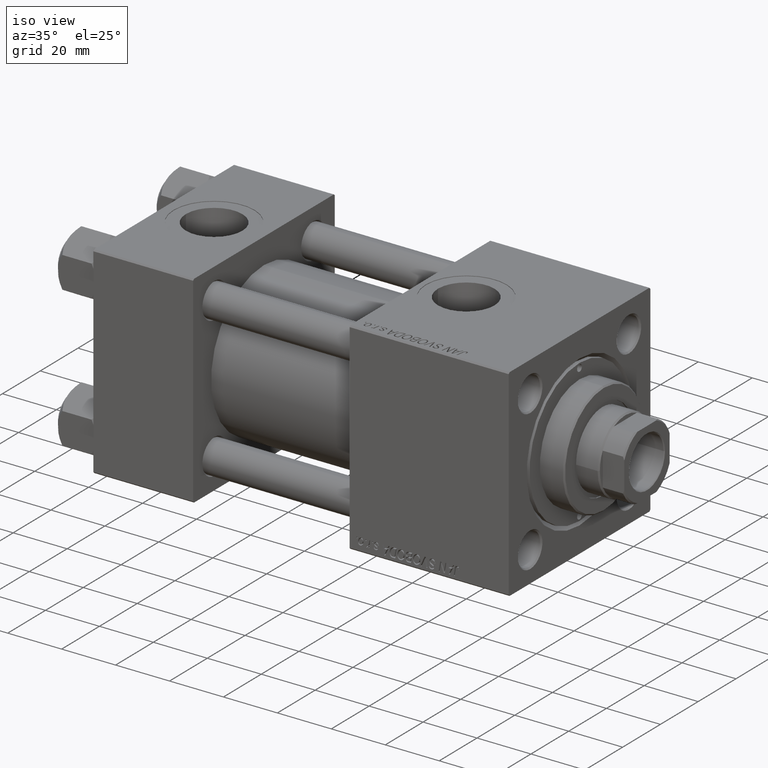
[diagram: clean part render]
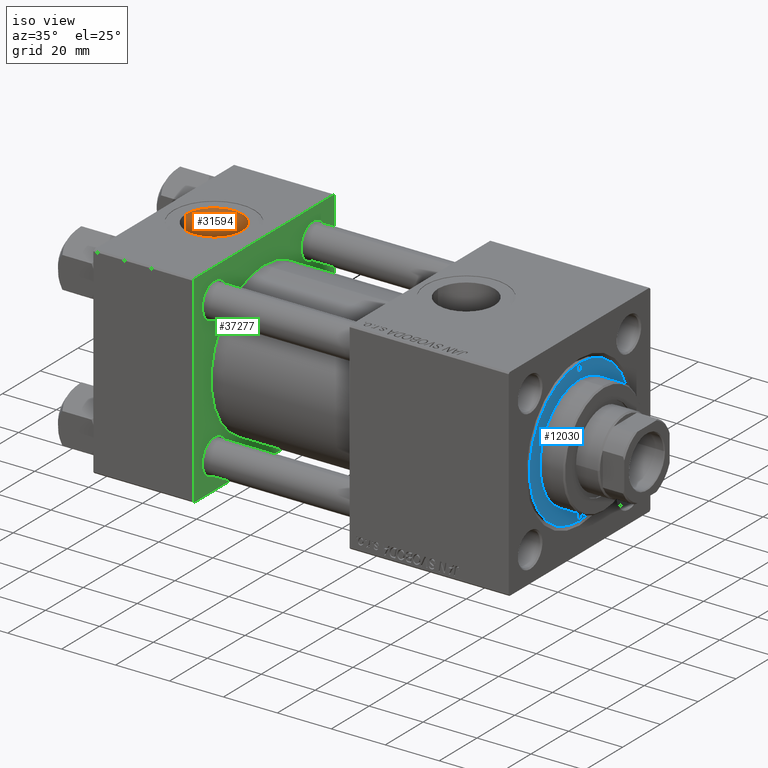
[diagram: same view with three faces highlighted in distinct colors, each labeled with its STEP entity id]
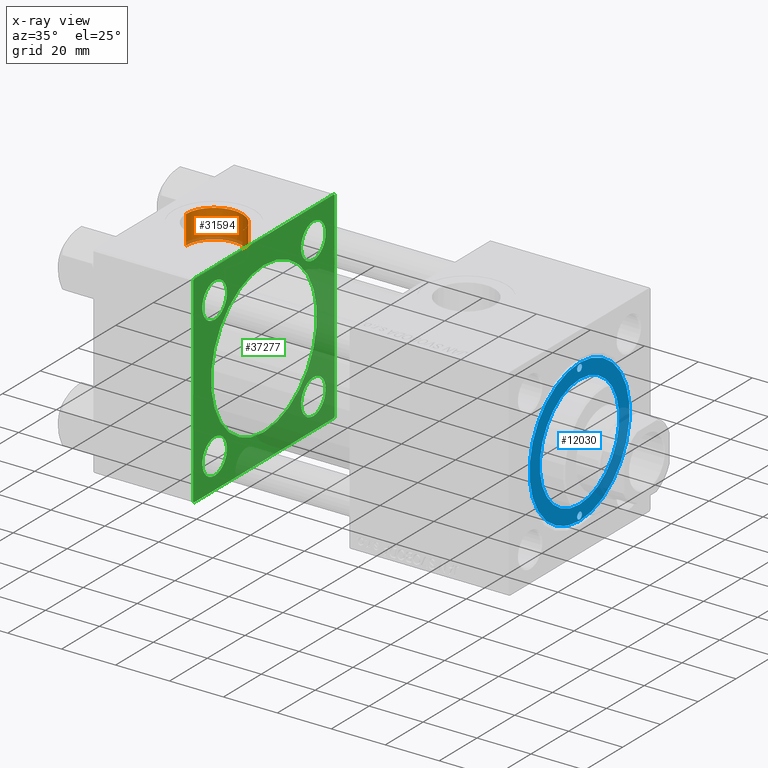
[diagram: x-ray of the same camera — body ghosted, the three highlighted faces saturated]
A machine part, iso view with three faces highlighted in distinct colors.
The next image is the same camera in x-ray (body ghosted, the three faces saturated) — at least one of them is partly hidden behind the body in this view.
Their STEP definitions:

[orange] entity #31594 — the highlighted cylindrical surface (edge-blend (fillet) strip) has radius 10.48 mm, axis along (0, 0, 1).
#7 = CIRCLE ( 'NONE', #9766, 10.48000000000000043 ) ;
#591 = EDGE_CURVE ( 'NONE', #4363, #19165, #20390, .T. ) ;
#1075 = DIRECTION ( 'NONE',  ( -0.000000000000000000, -0.000000000000000000, 1.000000000000000000 ) ) ;
#1520 = DIRECTION ( 'NONE',  ( 1.000000000000000000, 0.000000000000000000, 0.000000000000000000 ) ) ;
#1685 = AXIS2_PLACEMENT_3D ( 'NONE', #2385, #37034, #17930 ) ;
#2385 = CARTESIAN_POINT ( 'NONE',  ( 18.50000000000000000, -5.204170427930421283E-15, 26.69999999999999929 ) ) ;
#2516 = FACE_OUTER_BOUND ( 'NONE', #12651, .T. ) ;
#4363 = VERTEX_POINT ( 'NONE', #6082 ) ;
#4905 = CARTESIAN_POINT ( 'NONE',  ( 8.019999999999999574, -3.920740582423995006E-15, 26.69999999999999929 ) ) ;
#4949 = ORIENTED_EDGE ( 'NONE', *, *, #47593, .F. ) ;
#6082 = CARTESIAN_POINT ( 'NONE',  ( 28.98000000000000043, -5.204170427930421283E-15, 26.69999999999999929 ) ) ;
#8033 = CARTESIAN_POINT ( 'NONE',  ( 18.50000000000000000, -5.204170427930421283E-15, 37.29999999999999716 ) ) ;
#9766 = AXIS2_PLACEMENT_3D ( 'NONE', #8033, #30724, #35279 ) ;
#10441 = VERTEX_POINT ( 'NONE', #27134 ) ;
#10836 = EDGE_CURVE ( 'NONE', #16891, #10441, #7, .T. ) ;
#11884 = CARTESIAN_POINT ( 'NONE',  ( 28.98000000000000043, -5.204170427930421283E-15, 26.69999999999999929 ) ) ;
#12371 = LINE ( 'NONE', #11884, #48913 ) ;
#12651 = EDGE_LOOP ( 'NONE', ( #4949, #27917, #27805, #39575 ) ) ;
#14237 = CARTESIAN_POINT ( 'NONE',  ( 18.50000000000000000, -5.204170427930421283E-15, 26.69999999999999929 ) ) ;
#16891 = VERTEX_POINT ( 'NONE', #47490 ) ;
#17930 = DIRECTION ( 'NONE',  ( 1.000000000000000000, 0.000000000000000000, 0.000000000000000000 ) ) ;
#18411 = EDGE_CURVE ( 'NONE', #4363, #16891, #12371, .T. ) ;
#19165 = VERTEX_POINT ( 'NONE', #31560 ) ;
#20390 = CIRCLE ( 'NONE', #1685, 10.48000000000000043 ) ;
#21209 = LINE ( 'NONE', #4905, #28132 ) ;
#27134 = CARTESIAN_POINT ( 'NONE',  ( 8.019999999999999574, -3.920740582423995006E-15, 37.29999999999999716 ) ) ;
#27805 = ORIENTED_EDGE ( 'NONE', *, *, #18411, .T. ) ;
#27917 = ORIENTED_EDGE ( 'NONE', *, *, #591, .F. ) ;
#27925 = DIRECTION ( 'NONE',  ( -0.000000000000000000, -0.000000000000000000, 1.000000000000000000 ) ) ;
#28132 = VECTOR ( 'NONE', #1075, 1000.000000000000000 ) ;
#29040 = DIRECTION ( 'NONE',  ( -0.000000000000000000, -0.000000000000000000, 1.000000000000000000 ) ) ;
#30724 = DIRECTION ( 'NONE',  ( 0.000000000000000000, 0.000000000000000000, 1.000000000000000000 ) ) ;
#31560 = CARTESIAN_POINT ( 'NONE',  ( 8.019999999999999574, -3.920740582423995006E-15, 26.69999999999999929 ) ) ;
#31594 = ADVANCED_FACE ( 'NONE', ( #2516 ), #40976, .F. ) ;
#35279 = DIRECTION ( 'NONE',  ( 1.000000000000000000, 0.000000000000000000, 0.000000000000000000 ) ) ;
#37034 = DIRECTION ( 'NONE',  ( 0.000000000000000000, 0.000000000000000000, 1.000000000000000000 ) ) ;
#39575 = ORIENTED_EDGE ( 'NONE', *, *, #10836, .T. ) ;
#39599 = AXIS2_PLACEMENT_3D ( 'NONE', #14237, #29040, #1520 ) ;
#40976 = CYLINDRICAL_SURFACE ( 'NONE', #39599, 10.48000000000000043 ) ;
#47490 = CARTESIAN_POINT ( 'NONE',  ( 28.98000000000000043, -5.204170427930421283E-15, 37.29999999999999716 ) ) ;
#47593 = EDGE_CURVE ( 'NONE', #19165, #10441, #21209, .T. ) ;
#48913 = VECTOR ( 'NONE', #27925, 1000.000000000000000 ) ;

[blue] entity #12030 — the highlighted planar face has unit normal (1, 0, 0).
#2627 = CIRCLE ( 'NONE', #18095, 1.250000000000001110 ) ;
#2725 = DIRECTION ( 'NONE',  ( 0.000000000000000000, 0.000000000000000000, 1.000000000000000000 ) ) ;
#3029 = FACE_BOUND ( 'NONE', #15132, .T. ) ;
#3327 = CARTESIAN_POINT ( 'NONE',  ( 26.50000000000000355, 3.245314017740486554E-15, 28.69999999999999929 ) ) ;
#3503 = CARTESIAN_POINT ( 'NONE',  ( 0.000000000000000000, 0.000000000000000000, 28.69999999999999929 ) ) ;
#3510 = AXIS2_PLACEMENT_3D ( 'NONE', #28324, #36454, #36204 ) ;
#4896 = EDGE_CURVE ( 'NONE', #49109, #35236, #2627, .T. ) ;
#5426 = EDGE_LOOP ( 'NONE', ( #29700, #39382 ) ) ;
#5813 = EDGE_CURVE ( 'NONE', #16487, #6109, #16496, .T. ) ;
#6100 = FACE_BOUND ( 'NONE', #41269, .T. ) ;
#6109 = VERTEX_POINT ( 'NONE', #42884 ) ;
#7182 = CARTESIAN_POINT ( 'NONE',  ( 0.000000000000000000, 0.000000000000000000, 28.69999999999999929 ) ) ;
#7764 = AXIS2_PLACEMENT_3D ( 'NONE', #16462, #38892, #20045 ) ;
#8029 = DIRECTION ( 'NONE',  ( 0.000000000000000000, 0.000000000000000000, 1.000000000000000000 ) ) ;
#8308 = AXIS2_PLACEMENT_3D ( 'NONE', #27394, #8029, #50278 ) ;
#8321 = DIRECTION ( 'NONE',  ( 1.000000000000000000, 0.000000000000000000, 0.000000000000000000 ) ) ;
#8510 = CARTESIAN_POINT ( 'NONE',  ( 21.00000000000000000, 2.571758278209441661E-15, 28.69999999999999929 ) ) ;
#9080 = CARTESIAN_POINT ( 'NONE',  ( -23.50000000000000000, 0.000000000000000000, 28.69999999999999929 ) ) ;
#10191 = EDGE_CURVE ( 'NONE', #10446, #48982, #26011, .T. ) ;
#10446 = VERTEX_POINT ( 'NONE', #8510 ) ;
#11170 = VERTEX_POINT ( 'NONE', #3327 ) ;
#11708 = CARTESIAN_POINT ( 'NONE',  ( 23.50000000000000000, 1.530808498934188859E-16, 28.69999999999999929 ) ) ;
#12030 = ADVANCED_FACE ( 'NONE', ( #3029, #29782, #6100, #40974 ), #40725, .T. ) ;
#13133 = ORIENTED_EDGE ( 'NONE', *, *, #5813, .F. ) ;
#15132 = EDGE_LOOP ( 'NONE', ( #36638, #45351 ) ) ;
#15241 = CARTESIAN_POINT ( 'NONE',  ( -21.00000000000000000, 0.000000000000000000, 28.69999999999999929 ) ) ;
#16462 = CARTESIAN_POINT ( 'NONE',  ( -24.75000000000000000, 0.000000000000000000, 28.69999999999999929 ) ) ;
#16487 = VERTEX_POINT ( 'NONE', #11708 ) ;
#16496 = CIRCLE ( 'NONE', #21377, 1.250000000000001110 ) ;
#18062 = AXIS2_PLACEMENT_3D ( 'NONE', #42099, #21991, #37510 ) ;
#18095 = AXIS2_PLACEMENT_3D ( 'NONE', #44596, #29086, #48643 ) ;
#18786 = DIRECTION ( 'NONE',  ( 1.000000000000000000, 0.000000000000000000, 0.000000000000000000 ) ) ;
#19052 = DIRECTION ( 'NONE',  ( 0.000000000000000000, 0.000000000000000000, 1.000000000000000000 ) ) ;
#20045 = DIRECTION ( 'NONE',  ( 1.000000000000000000, 0.000000000000000000, 0.000000000000000000 ) ) ;
#21377 = AXIS2_PLACEMENT_3D ( 'NONE', #40933, #2725, #18786 ) ;
#21403 = CIRCLE ( 'NONE', #3510, 26.50000000000000355 ) ;
#21862 = EDGE_CURVE ( 'NONE', #33865, #11170, #21403, .T. ) ;
#21890 = DIRECTION ( 'NONE',  ( 1.000000000000000000, 0.000000000000000000, -0.000000000000000000 ) ) ;
#21991 = DIRECTION ( 'NONE',  ( 0.000000000000000000, 0.000000000000000000, 1.000000000000000000 ) ) ;
#22115 = EDGE_LOOP ( 'NONE', ( #32428, #13133 ) ) ;
#26011 = CIRCLE ( 'NONE', #32519, 21.00000000000000000 ) ;
#26542 = DIRECTION ( 'NONE',  ( 1.000000000000000000, 0.000000000000000000, 0.000000000000000000 ) ) ;
#27394 = CARTESIAN_POINT ( 'NONE',  ( 24.75000000000000000, 0.000000000000000000, 28.69999999999999929 ) ) ;
#27786 = EDGE_CURVE ( 'NONE', #35236, #49109, #32145, .T. ) ;
#28324 = CARTESIAN_POINT ( 'NONE',  ( 0.000000000000000000, 0.000000000000000000, 28.69999999999999929 ) ) ;
#29086 = DIRECTION ( 'NONE',  ( 0.000000000000000000, 0.000000000000000000, 1.000000000000000000 ) ) ;
#29438 = CIRCLE ( 'NONE', #18062, 26.50000000000000355 ) ;
#29700 = ORIENTED_EDGE ( 'NONE', *, *, #21862, .T. ) ;
#29782 = FACE_BOUND ( 'NONE', #22115, .T. ) ;
#30239 = ORIENTED_EDGE ( 'NONE', *, *, #41053, .F. ) ;
#32145 = CIRCLE ( 'NONE', #7764, 1.250000000000001110 ) ;
#32428 = ORIENTED_EDGE ( 'NONE', *, *, #38990, .F. ) ;
#32519 = AXIS2_PLACEMENT_3D ( 'NONE', #3503, #19052, #8321 ) ;
#32777 = AXIS2_PLACEMENT_3D ( 'NONE', #7182, #39238, #26542 ) ;
#33809 = CARTESIAN_POINT ( 'NONE',  ( -26.00000000000000355, 1.530808498934188859E-16, 28.69999999999999929 ) ) ;
#33865 = VERTEX_POINT ( 'NONE', #43561 ) ;
#34088 = CARTESIAN_POINT ( 'NONE',  ( 0.000000000000000000, 0.000000000000000000, 28.69999999999999929 ) ) ;
#34405 = CIRCLE ( 'NONE', #32777, 21.00000000000000000 ) ;
#35236 = VERTEX_POINT ( 'NONE', #33809 ) ;
#36204 = DIRECTION ( 'NONE',  ( 1.000000000000000000, 0.000000000000000000, 0.000000000000000000 ) ) ;
#36454 = DIRECTION ( 'NONE',  ( 0.000000000000000000, 0.000000000000000000, 1.000000000000000000 ) ) ;
#36638 = ORIENTED_EDGE ( 'NONE', *, *, #4896, .F. ) ;
#37510 = DIRECTION ( 'NONE',  ( 1.000000000000000000, 0.000000000000000000, 0.000000000000000000 ) ) ;
#38892 = DIRECTION ( 'NONE',  ( 0.000000000000000000, 0.000000000000000000, 1.000000000000000000 ) ) ;
#38990 = EDGE_CURVE ( 'NONE', #6109, #16487, #45703, .T. ) ;
#39238 = DIRECTION ( 'NONE',  ( 0.000000000000000000, 0.000000000000000000, 1.000000000000000000 ) ) ;
#39271 = EDGE_CURVE ( 'NONE', #11170, #33865, #29438, .T. ) ;
#39382 = ORIENTED_EDGE ( 'NONE', *, *, #39271, .T. ) ;
#40725 = PLANE ( 'NONE',  #43959 ) ;
#40933 = CARTESIAN_POINT ( 'NONE',  ( 24.75000000000000000, 0.000000000000000000, 28.69999999999999929 ) ) ;
#40974 = FACE_OUTER_BOUND ( 'NONE', #5426, .T. ) ;
#41053 = EDGE_CURVE ( 'NONE', #48982, #10446, #34405, .T. ) ;
#41269 = EDGE_LOOP ( 'NONE', ( #30239, #49377 ) ) ;
#41730 = DIRECTION ( 'NONE',  ( 0.000000000000000000, 0.000000000000000000, 1.000000000000000000 ) ) ;
#42099 = CARTESIAN_POINT ( 'NONE',  ( 0.000000000000000000, 0.000000000000000000, 28.69999999999999929 ) ) ;
#42884 = CARTESIAN_POINT ( 'NONE',  ( 26.00000000000000355, 0.000000000000000000, 28.69999999999999929 ) ) ;
#43561 = CARTESIAN_POINT ( 'NONE',  ( -26.50000000000000355, 0.000000000000000000, 28.69999999999999929 ) ) ;
#43959 = AXIS2_PLACEMENT_3D ( 'NONE', #34088, #41730, #21890 ) ;
#44596 = CARTESIAN_POINT ( 'NONE',  ( -24.75000000000000000, 0.000000000000000000, 28.69999999999999929 ) ) ;
#45351 = ORIENTED_EDGE ( 'NONE', *, *, #27786, .F. ) ;
#45703 = CIRCLE ( 'NONE', #8308, 1.250000000000001110 ) ;
#48643 = DIRECTION ( 'NONE',  ( 1.000000000000000000, 0.000000000000000000, 0.000000000000000000 ) ) ;
#48982 = VERTEX_POINT ( 'NONE', #15241 ) ;
#49109 = VERTEX_POINT ( 'NONE', #9080 ) ;
#49377 = ORIENTED_EDGE ( 'NONE', *, *, #10191, .F. ) ;
#50278 = DIRECTION ( 'NONE',  ( 1.000000000000000000, 0.000000000000000000, 0.000000000000000000 ) ) ;

[green] entity #37277 — the highlighted planar face has unit normal (-1, 0, 0).
#332 = EDGE_CURVE ( 'NONE', #41268, #25103, #30176, .T. ) ;
#432 = ORIENTED_EDGE ( 'NONE', *, *, #19054, .T. ) ;
#536 = CARTESIAN_POINT ( 'NONE',  ( 37.00000000000000000, 26.14999999999999858, 32.65000000000004121 ) ) ;
#635 = CARTESIAN_POINT ( 'NONE',  ( 37.00000000000000000, 26.14999999999999858, -26.15000000000000213 ) ) ;
#1090 = EDGE_CURVE ( 'NONE', #36902, #8687, #21230, .T. ) ;
#1131 = VECTOR ( 'NONE', #10509, 1000.000000000000114 ) ;
#3122 = LINE ( 'NONE', #50207, #1131 ) ;
#3452 = CARTESIAN_POINT ( 'NONE',  ( 37.00000000000000000, -26.14999999999999147, 32.65000000000001990 ) ) ;
#3529 = EDGE_CURVE ( 'NONE', #19445, #18404, #4699, .T. ) ;
#3547 = ORIENTED_EDGE ( 'NONE', *, *, #24054, .T. ) ;
#3993 = AXIS2_PLACEMENT_3D ( 'NONE', #24538, #40084, #17917 ) ;
#4699 = LINE ( 'NONE', #20239, #26966 ) ;
#5493 = EDGE_CURVE ( 'NONE', #7420, #36113, #39245, .T. ) ;
#5771 = AXIS2_PLACEMENT_3D ( 'NONE', #25758, #6653, #49918 ) ;
#6144 = VERTEX_POINT ( 'NONE', #38567 ) ;
#6222 = VERTEX_POINT ( 'NONE', #44578 ) ;
#6653 = DIRECTION ( 'NONE',  ( -1.000000000000000000, 0.000000000000000000, -0.000000000000000000 ) ) ;
#7113 = AXIS2_PLACEMENT_3D ( 'NONE', #28941, #29433, #21804 ) ;
#7420 = VERTEX_POINT ( 'NONE', #30331 ) ;
#7948 = ORIENTED_EDGE ( 'NONE', *, *, #21771, .F. ) ;
#8110 = EDGE_LOOP ( 'NONE', ( #7948, #9049 ) ) ;
#8634 = VECTOR ( 'NONE', #47949, 1000.000000000000114 ) ;
#8687 = VERTEX_POINT ( 'NONE', #536 ) ;
#9022 = CARTESIAN_POINT ( 'NONE',  ( 37.00000000000000000, 36.99999999999999289, 37.50000000000000000 ) ) ;
#9049 = ORIENTED_EDGE ( 'NONE', *, *, #332, .F. ) ;
#9078 = ORIENTED_EDGE ( 'NONE', *, *, #49648, .T. ) ;
#9160 = CARTESIAN_POINT ( 'NONE',  ( 37.00000000000000000, -37.50000000000000711, 36.99999999999999289 ) ) ;
#9351 = VERTEX_POINT ( 'NONE', #40124 ) ;
#9978 = VECTOR ( 'NONE', #27758, 1000.000000000000000 ) ;
#10034 = PLANE ( 'NONE',  #41720 ) ;
#10082 = CARTESIAN_POINT ( 'NONE',  ( 37.00000000000000000, -26.14999999999999147, 19.65000000000000213 ) ) ;
#10116 = EDGE_LOOP ( 'NONE', ( #27724, #432, #44708, #3547, #40880, #29534, #42702, #24342 ) ) ;
#10509 = DIRECTION ( 'NONE',  ( 0.000000000000000000, -0.7071067811865474617, 0.7071067811865474617 ) ) ;
#11125 = CIRCLE ( 'NONE', #21705, 6.500000000000002665 ) ;
#11717 = LINE ( 'NONE', #33881, #9978 ) ;
#11839 = CARTESIAN_POINT ( 'NONE',  ( 37.00000000000000000, 26.14999999999999858, -32.65000000000003411 ) ) ;
#12420 = AXIS2_PLACEMENT_3D ( 'NONE', #37689, #33613, #26230 ) ;
#12467 = LINE ( 'NONE', #27516, #14051 ) ;
#12621 = DIRECTION ( 'NONE',  ( 0.000000000000000000, 0.000000000000000000, 1.000000000000000000 ) ) ;
#12771 = CIRCLE ( 'NONE', #7113, 6.500000000000008882 ) ;
#13349 = DIRECTION ( 'NONE',  ( -0.000000000000000000, 0.000000000000000000, 1.000000000000000000 ) ) ;
#14051 = VECTOR ( 'NONE', #23922, 1000.000000000000000 ) ;
#14102 = FACE_BOUND ( 'NONE', #38206, .T. ) ;
#14336 = CIRCLE ( 'NONE', #24114, 6.500000000000030198 ) ;
#15646 = CIRCLE ( 'NONE', #12420, 6.500000000000008882 ) ;
#16096 = DIRECTION ( 'NONE',  ( 0.000000000000000000, 0.000000000000000000, 1.000000000000000000 ) ) ;
#16411 = VECTOR ( 'NONE', #45117, 1000.000000000000114 ) ;
#16451 = EDGE_CURVE ( 'NONE', #36317, #17724, #15646, .T. ) ;
#17288 = AXIS2_PLACEMENT_3D ( 'NONE', #34105, #45051, #49877 ) ;
#17381 = EDGE_CURVE ( 'NONE', #9351, #6222, #11717, .T. ) ;
#17384 = EDGE_CURVE ( 'NONE', #25892, #46092, #12467, .T. ) ;
#17699 = CARTESIAN_POINT ( 'NONE',  ( 37.00000000000000000, -37.50000000000000711, 37.49999999999999289 ) ) ;
#17724 = VERTEX_POINT ( 'NONE', #10082 ) ;
#17917 = DIRECTION ( 'NONE',  ( 0.000000000000000000, 0.000000000000000000, 1.000000000000000000 ) ) ;
#18404 = VERTEX_POINT ( 'NONE', #31729 ) ;
#18418 = EDGE_CURVE ( 'NONE', #6144, #20401, #45654, .T. ) ;
#19054 = EDGE_CURVE ( 'NONE', #40088, #18404, #29608, .T. ) ;
#19445 = VERTEX_POINT ( 'NONE', #44449 ) ;
#20239 = CARTESIAN_POINT ( 'NONE',  ( 37.00000000000000000, 37.49999999999999289, 37.50000000000000000 ) ) ;
#20252 = LINE ( 'NONE', #47198, #47286 ) ;
#20401 = VERTEX_POINT ( 'NONE', #11839 ) ;
#21013 = FACE_BOUND ( 'NONE', #41112, .T. ) ;
#21230 = CIRCLE ( 'NONE', #5771, 6.500000000000030198 ) ;
#21513 = FACE_BOUND ( 'NONE', #50046, .T. ) ;
#21580 = DIRECTION ( 'NONE',  ( 1.000000000000000000, -0.000000000000000000, 0.000000000000000000 ) ) ;
#21705 = AXIS2_PLACEMENT_3D ( 'NONE', #22750, #41845, #31151 ) ;
#21771 = EDGE_CURVE ( 'NONE', #25103, #41268, #44969, .T. ) ;
#21804 = DIRECTION ( 'NONE',  ( 0.000000000000000000, 0.000000000000000000, 1.000000000000000000 ) ) ;
#22750 = CARTESIAN_POINT ( 'NONE',  ( 37.00000000000000000, -26.14999999999999147, -26.15000000000000924 ) ) ;
#22938 = CARTESIAN_POINT ( 'NONE',  ( 37.00000000000000000, -2.602085213965210642E-15, 28.00000000000000000 ) ) ;
#23113 = ORIENTED_EDGE ( 'NONE', *, *, #5493, .T. ) ;
#23217 = VECTOR ( 'NONE', #30414, 1000.000000000000000 ) ;
#23807 = LINE ( 'NONE', #39341, #8634 ) ;
#23922 = DIRECTION ( 'NONE',  ( 0.000000000000000000, -1.000000000000000000, -9.251858538542971581E-17 ) ) ;
#24054 = EDGE_CURVE ( 'NONE', #19445, #25892, #3122, .T. ) ;
#24114 = AXIS2_PLACEMENT_3D ( 'NONE', #635, #35534, #27901 ) ;
#24342 = ORIENTED_EDGE ( 'NONE', *, *, #17381, .T. ) ;
#24538 = CARTESIAN_POINT ( 'NONE',  ( 37.00000000000000000, 26.14999999999999858, 26.15000000000000213 ) ) ;
#24999 = CARTESIAN_POINT ( 'NONE',  ( 37.00000000000000000, 26.14999999999999858, 19.64999999999997016 ) ) ;
#25103 = VERTEX_POINT ( 'NONE', #22938 ) ;
#25758 = CARTESIAN_POINT ( 'NONE',  ( 37.00000000000000000, 26.14999999999999858, 26.15000000000000213 ) ) ;
#25892 = VERTEX_POINT ( 'NONE', #9022 ) ;
#26230 = DIRECTION ( 'NONE',  ( 0.000000000000000000, 0.000000000000000000, 1.000000000000000000 ) ) ;
#26335 = LINE ( 'NONE', #17699, #23217 ) ;
#26966 = VECTOR ( 'NONE', #31457, 1000.000000000000000 ) ;
#27004 = AXIS2_PLACEMENT_3D ( 'NONE', #31978, #47475, #12621 ) ;
#27101 = ORIENTED_EDGE ( 'NONE', *, *, #18418, .T. ) ;
#27361 = EDGE_LOOP ( 'NONE', ( #27844, #50128 ) ) ;
#27516 = CARTESIAN_POINT ( 'NONE',  ( 37.00000000000000000, 37.49999999999999289, 37.50000000000000000 ) ) ;
#27724 = ORIENTED_EDGE ( 'NONE', *, *, #37264, .F. ) ;
#27758 = DIRECTION ( 'NONE',  ( 0.000000000000000000, 0.7071067811865524577, -0.7071067811865426878 ) ) ;
#27844 = ORIENTED_EDGE ( 'NONE', *, *, #1090, .T. ) ;
#27901 = DIRECTION ( 'NONE',  ( 0.000000000000000000, 0.000000000000000000, 1.000000000000000000 ) ) ;
#28941 = CARTESIAN_POINT ( 'NONE',  ( 37.00000000000000000, -26.14999999999999147, 26.15000000000000924 ) ) ;
#29433 = DIRECTION ( 'NONE',  ( -1.000000000000000000, 0.000000000000000000, -0.000000000000000000 ) ) ;
#29534 = ORIENTED_EDGE ( 'NONE', *, *, #49368, .T. ) ;
#29608 = LINE ( 'NONE', #49436, #16411 ) ;
#30102 = EDGE_CURVE ( 'NONE', #20401, #6144, #14336, .T. ) ;
#30176 = CIRCLE ( 'NONE', #37461, 28.00000000000000000 ) ;
#30331 = CARTESIAN_POINT ( 'NONE',  ( 37.00000000000000000, -26.14999999999999147, -19.65000000000000924 ) ) ;
#30414 = DIRECTION ( 'NONE',  ( 0.000000000000000000, 9.251858538542971581E-17, -1.000000000000000000 ) ) ;
#30992 = VERTEX_POINT ( 'NONE', #9160 ) ;
#31091 = ORIENTED_EDGE ( 'NONE', *, *, #35314, .T. ) ;
#31141 = CARTESIAN_POINT ( 'NONE',  ( 37.00000000000000000, -2.602085213965210642E-15, 0.000000000000000000 ) ) ;
#31151 = DIRECTION ( 'NONE',  ( 0.000000000000000000, 0.000000000000000000, 1.000000000000000000 ) ) ;
#31457 = DIRECTION ( 'NONE',  ( 0.000000000000000000, 0.000000000000000000, -1.000000000000000000 ) ) ;
#31729 = CARTESIAN_POINT ( 'NONE',  ( 37.00000000000000000, 37.49999999999999289, -36.99999999999998579 ) ) ;
#31770 = CARTESIAN_POINT ( 'NONE',  ( 37.00000000000000000, -37.00000000000000711, 37.49999999999999289 ) ) ;
#31978 = CARTESIAN_POINT ( 'NONE',  ( 37.00000000000000000, 26.14999999999999858, -26.15000000000000213 ) ) ;
#33613 = DIRECTION ( 'NONE',  ( -1.000000000000000000, 0.000000000000000000, -0.000000000000000000 ) ) ;
#33881 = CARTESIAN_POINT ( 'NONE',  ( 37.00000000000000000, -37.00000000000002132, -37.50000000000000711 ) ) ;
#34105 = CARTESIAN_POINT ( 'NONE',  ( 37.00000000000000000, -26.14999999999999147, -26.15000000000000924 ) ) ;
#34870 = ORIENTED_EDGE ( 'NONE', *, *, #30102, .T. ) ;
#35314 = EDGE_CURVE ( 'NONE', #17724, #36317, #12771, .T. ) ;
#35534 = DIRECTION ( 'NONE',  ( -1.000000000000000000, 0.000000000000000000, -0.000000000000000000 ) ) ;
#36113 = VERTEX_POINT ( 'NONE', #41709 ) ;
#36166 = CARTESIAN_POINT ( 'NONE',  ( 37.00000000000000000, 8.269258236473776482E-16, -28.00000000000000000 ) ) ;
#36317 = VERTEX_POINT ( 'NONE', #3452 ) ;
#36511 = EDGE_CURVE ( 'NONE', #8687, #36902, #40557, .T. ) ;
#36902 = VERTEX_POINT ( 'NONE', #24999 ) ;
#37264 = EDGE_CURVE ( 'NONE', #40088, #6222, #20252, .T. ) ;
#37277 = ADVANCED_FACE ( 'NONE', ( #21013, #21513, #14102, #40595, #47952, #45149 ), #10034, .F. ) ;
#37461 = AXIS2_PLACEMENT_3D ( 'NONE', #44968, #21580, #41157 ) ;
#37689 = CARTESIAN_POINT ( 'NONE',  ( 37.00000000000000000, -26.14999999999999147, 26.15000000000000924 ) ) ;
#38206 = EDGE_LOOP ( 'NONE', ( #31091, #42761 ) ) ;
#38567 = CARTESIAN_POINT ( 'NONE',  ( 37.00000000000000000, 26.14999999999999858, -19.64999999999997371 ) ) ;
#39091 = DIRECTION ( 'NONE',  ( 0.000000000000000000, -1.000000000000000000, -9.251858538542972814E-17 ) ) ;
#39245 = CIRCLE ( 'NONE', #17288, 6.500000000000002665 ) ;
#39341 = CARTESIAN_POINT ( 'NONE',  ( 37.00000000000000000, -37.50000000000000711, 36.99999999999999289 ) ) ;
#40084 = DIRECTION ( 'NONE',  ( -1.000000000000000000, 0.000000000000000000, -0.000000000000000000 ) ) ;
#40088 = VERTEX_POINT ( 'NONE', #49715 ) ;
#40109 = AXIS2_PLACEMENT_3D ( 'NONE', #31141, #42594, #16096 ) ;
#40124 = CARTESIAN_POINT ( 'NONE',  ( 37.00000000000000000, -37.50000000000000000, -37.00000000000003553 ) ) ;
#40557 = CIRCLE ( 'NONE', #3993, 6.500000000000030198 ) ;
#40595 = FACE_BOUND ( 'NONE', #27361, .T. ) ;
#40880 = ORIENTED_EDGE ( 'NONE', *, *, #17384, .T. ) ;
#41112 = EDGE_LOOP ( 'NONE', ( #9078, #23113 ) ) ;
#41157 = DIRECTION ( 'NONE',  ( 0.000000000000000000, 0.000000000000000000, 1.000000000000000000 ) ) ;
#41268 = VERTEX_POINT ( 'NONE', #36166 ) ;
#41709 = CARTESIAN_POINT ( 'NONE',  ( 37.00000000000000000, -26.14999999999999147, -32.65000000000001279 ) ) ;
#41720 = AXIS2_PLACEMENT_3D ( 'NONE', #44656, #48959, #13349 ) ;
#41845 = DIRECTION ( 'NONE',  ( -1.000000000000000000, 0.000000000000000000, -0.000000000000000000 ) ) ;
#42594 = DIRECTION ( 'NONE',  ( 1.000000000000000000, -0.000000000000000000, 0.000000000000000000 ) ) ;
#42702 = ORIENTED_EDGE ( 'NONE', *, *, #47362, .T. ) ;
#42761 = ORIENTED_EDGE ( 'NONE', *, *, #16451, .T. ) ;
#44449 = CARTESIAN_POINT ( 'NONE',  ( 37.00000000000000000, 37.49999999999999289, 37.00000000000000000 ) ) ;
#44578 = CARTESIAN_POINT ( 'NONE',  ( 37.00000000000000000, -37.00000000000002132, -37.50000000000000711 ) ) ;
#44656 = CARTESIAN_POINT ( 'NONE',  ( 37.00000000000000000, 0.000000000000000000, 0.000000000000000000 ) ) ;
#44708 = ORIENTED_EDGE ( 'NONE', *, *, #3529, .F. ) ;
#44968 = CARTESIAN_POINT ( 'NONE',  ( 37.00000000000000000, -2.602085213965210642E-15, 0.000000000000000000 ) ) ;
#44969 = CIRCLE ( 'NONE', #40109, 28.00000000000000000 ) ;
#45051 = DIRECTION ( 'NONE',  ( -1.000000000000000000, 0.000000000000000000, -0.000000000000000000 ) ) ;
#45117 = DIRECTION ( 'NONE',  ( -0.000000000000000000, 0.7071067811865474617, 0.7071067811865474617 ) ) ;
#45149 = FACE_OUTER_BOUND ( 'NONE', #10116, .T. ) ;
#45654 = CIRCLE ( 'NONE', #27004, 6.500000000000030198 ) ;
#46092 = VERTEX_POINT ( 'NONE', #31770 ) ;
#47198 = CARTESIAN_POINT ( 'NONE',  ( 37.00000000000000000, 37.49999999999999289, -37.50000000000000000 ) ) ;
#47286 = VECTOR ( 'NONE', #39091, 1000.000000000000000 ) ;
#47362 = EDGE_CURVE ( 'NONE', #30992, #9351, #26335, .T. ) ;
#47475 = DIRECTION ( 'NONE',  ( -1.000000000000000000, 0.000000000000000000, -0.000000000000000000 ) ) ;
#47949 = DIRECTION ( 'NONE',  ( -0.000000000000000000, -0.7071067811865474617, -0.7071067811865474617 ) ) ;
#47952 = FACE_BOUND ( 'NONE', #8110, .T. ) ;
#48959 = DIRECTION ( 'NONE',  ( -1.000000000000000000, 0.000000000000000000, -0.000000000000000000 ) ) ;
#49368 = EDGE_CURVE ( 'NONE', #46092, #30992, #23807, .T. ) ;
#49436 = CARTESIAN_POINT ( 'NONE',  ( 37.00000000000000000, 37.49999999999999289, -36.99999999999998579 ) ) ;
#49648 = EDGE_CURVE ( 'NONE', #36113, #7420, #11125, .T. ) ;
#49715 = CARTESIAN_POINT ( 'NONE',  ( 37.00000000000000000, 36.99999999999997868, -37.50000000000000000 ) ) ;
#49877 = DIRECTION ( 'NONE',  ( 0.000000000000000000, 0.000000000000000000, 1.000000000000000000 ) ) ;
#49918 = DIRECTION ( 'NONE',  ( 0.000000000000000000, 0.000000000000000000, 1.000000000000000000 ) ) ;
#50046 = EDGE_LOOP ( 'NONE', ( #34870, #27101 ) ) ;
#50128 = ORIENTED_EDGE ( 'NONE', *, *, #36511, .T. ) ;
#50207 = CARTESIAN_POINT ( 'NONE',  ( 37.00000000000000000, 36.99999999999999289, 37.50000000000000000 ) ) ;